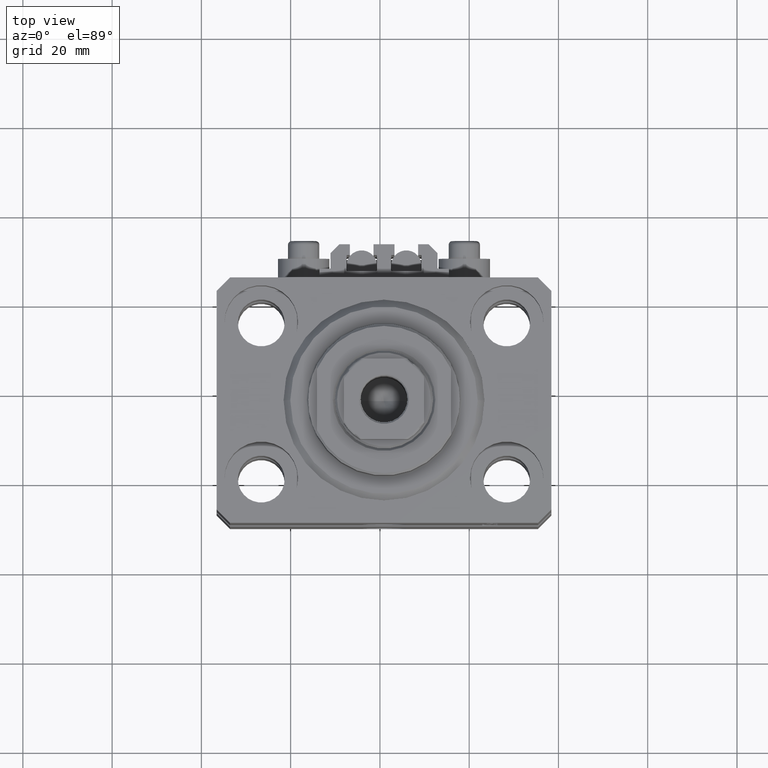
[diagram: clean part render]
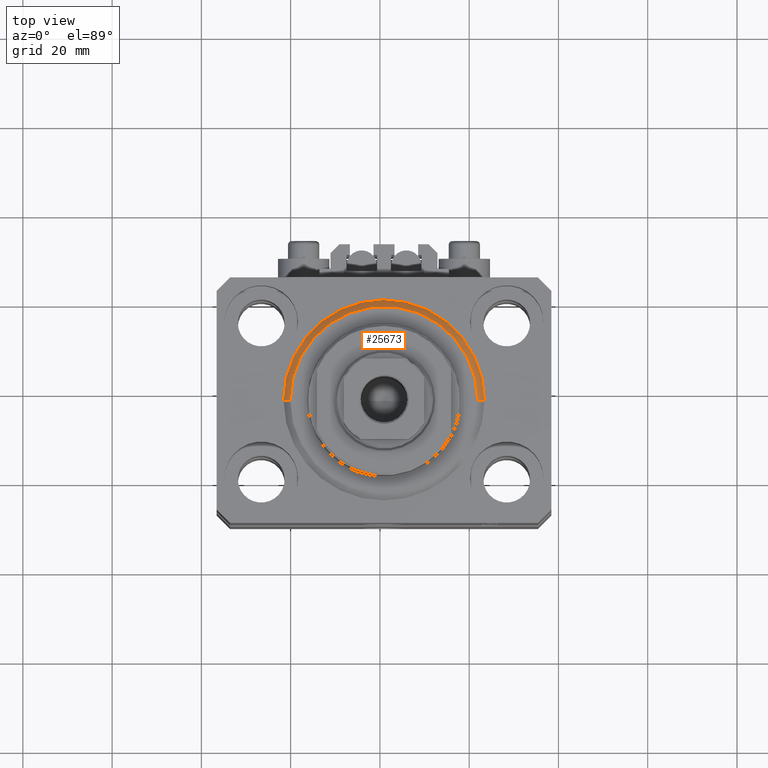
[diagram: same view with one face highlighted and labeled with its STEP entity id]
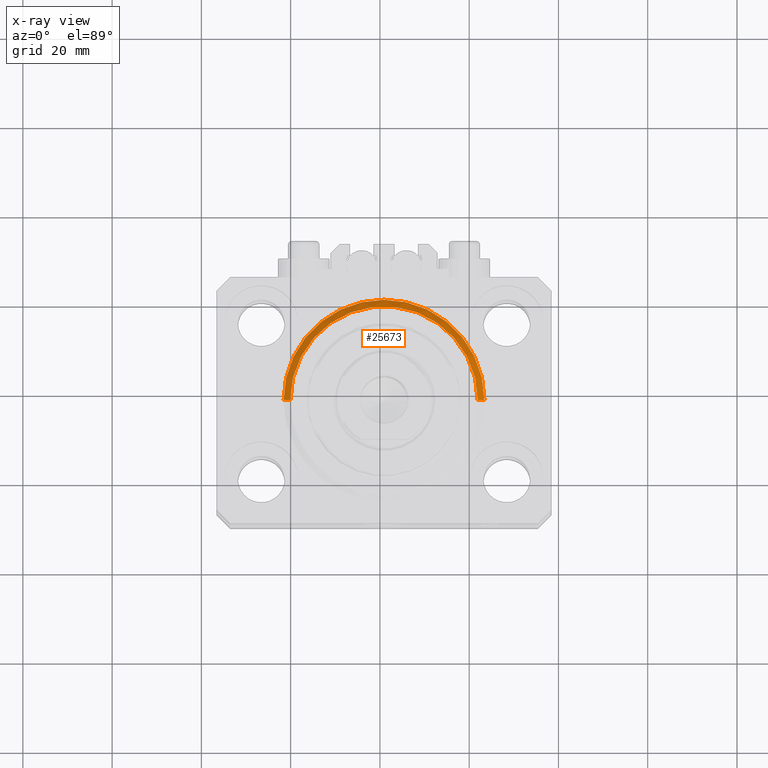
[diagram: x-ray of the same camera — body ghosted, the highlighted face saturated]
A machine part, top view. The second image highlights one B-rep face of the part: STEP entity #25673.
The next image is the same camera in x-ray: the body ghosted, the highlighted face saturated — about 0% of this face is hidden behind the body in this view.
In plain terms, the highlighted conical surface has half-angle 45 deg.
Its self-contained STEP definition (entity closure, byte-faithful):
#708 = CONICAL_SURFACE ( 'NONE', #36875, 22.50000000000000355, 0.7853981633974517207 ) ;
#844 = ORIENTED_EDGE ( 'NONE', *, *, #37825, .F. ) ;
#1735 = DIRECTION ( 'NONE',  ( -0.000000000000000000, -0.000000000000000000, 1.000000000000000000 ) ) ;
#1873 = CARTESIAN_POINT ( 'NONE',  ( -22.50000000000000355, 2.755455298081545172E-15, 1.500000000000039524 ) ) ;
#3848 = ORIENTED_EDGE ( 'NONE', *, *, #34377, .F. ) ;
#4319 = ORIENTED_EDGE ( 'NONE', *, *, #6120, .T. ) ;
#5101 = FACE_OUTER_BOUND ( 'NONE', #31514, .T. ) ;
#5809 = VERTEX_POINT ( 'NONE', #40059 ) ;
#6120 = EDGE_CURVE ( 'NONE', #35505, #5809, #16332, .T. ) ;
#6328 = CIRCLE ( 'NONE', #24012, 20.99999999999995381 ) ;
#8535 = AXIS2_PLACEMENT_3D ( 'NONE', #47608, #43998, #44233 ) ;
#9364 = DIRECTION ( 'NONE',  ( -0.000000000000000000, -0.000000000000000000, -1.000000000000000000 ) ) ;
#11817 = CARTESIAN_POINT ( 'NONE',  ( -20.99999999999995381, 2.663606788145490261E-15, 0.000000000000000000 ) ) ;
#16332 = LINE ( 'NONE', #1873, #43704 ) ;
#16788 = DIRECTION ( 'NONE',  ( -0.7071067811865500152, 8.659560562354962440E-17, 0.7071067811865451302 ) ) ;
#16868 = DIRECTION ( 'NONE',  ( 1.000000000000000000, 0.000000000000000000, 0.000000000000000000 ) ) ;
#18233 = CARTESIAN_POINT ( 'NONE',  ( 22.50000000000000355, 2.755455298081544383E-15, 1.500000000000039524 ) ) ;
#23591 = DIRECTION ( 'NONE',  ( 1.000000000000000000, 0.000000000000000000, 0.000000000000000000 ) ) ;
#24012 = AXIS2_PLACEMENT_3D ( 'NONE', #31328, #9364, #23591 ) ;
#24320 = VERTEX_POINT ( 'NONE', #29587 ) ;
#25673 = ADVANCED_FACE ( 'NONE', ( #5101 ), #708, .T. ) ;
#29587 = CARTESIAN_POINT ( 'NONE',  ( 20.99999999999995381, 0.000000000000000000, 0.000000000000000000 ) ) ;
#30117 = CIRCLE ( 'NONE', #8535, 22.50000000000000355 ) ;
#30670 = CARTESIAN_POINT ( 'NONE',  ( 0.000000000000000000, 0.000000000000000000, 1.500000000000039524 ) ) ;
#31328 = CARTESIAN_POINT ( 'NONE',  ( 0.000000000000000000, 0.000000000000000000, 0.000000000000000000 ) ) ;
#31514 = EDGE_LOOP ( 'NONE', ( #3848, #4319, #844, #31832 ) ) ;
#31832 = ORIENTED_EDGE ( 'NONE', *, *, #44016, .F. ) ;
#34377 = EDGE_CURVE ( 'NONE', #35505, #24320, #6328, .T. ) ;
#34486 = VERTEX_POINT ( 'NONE', #18233 ) ;
#35505 = VERTEX_POINT ( 'NONE', #11817 ) ;
#36104 = LINE ( 'NONE', #47217, #39445 ) ;
#36875 = AXIS2_PLACEMENT_3D ( 'NONE', #30670, #1735, #16868 ) ;
#37825 = EDGE_CURVE ( 'NONE', #34486, #5809, #30117, .T. ) ;
#39445 = VECTOR ( 'NONE', #40454, 1000.000000000000114 ) ;
#40059 = CARTESIAN_POINT ( 'NONE',  ( -22.50000000000000355, 0.000000000000000000, 1.500000000000039524 ) ) ;
#40454 = DIRECTION ( 'NONE',  ( 0.7071067811865500152, 0.000000000000000000, 0.7071067811865451302 ) ) ;
#43704 = VECTOR ( 'NONE', #16788, 1000.000000000000114 ) ;
#43998 = DIRECTION ( 'NONE',  ( -0.000000000000000000, -0.000000000000000000, 1.000000000000000000 ) ) ;
#44016 = EDGE_CURVE ( 'NONE', #24320, #34486, #36104, .T. ) ;
#44233 = DIRECTION ( 'NONE',  ( 1.000000000000000000, 0.000000000000000000, 0.000000000000000000 ) ) ;
#47217 = CARTESIAN_POINT ( 'NONE',  ( 22.50000000000000355, 0.000000000000000000, 1.500000000000039524 ) ) ;
#47608 = CARTESIAN_POINT ( 'NONE',  ( 0.000000000000000000, 0.000000000000000000, 1.500000000000039524 ) ) ;